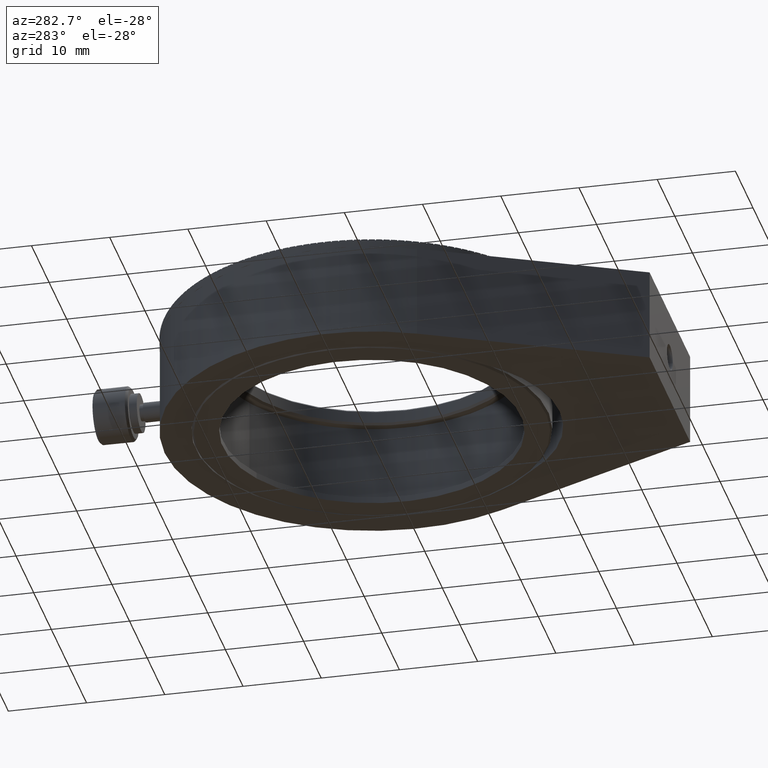
[diagram: clean part render]
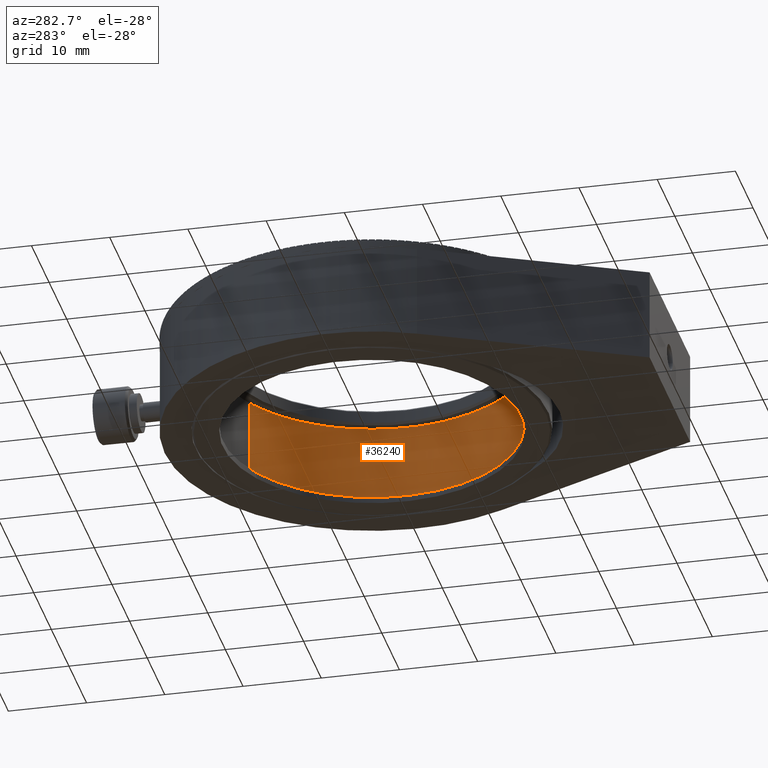
[diagram: same view with one face highlighted and labeled with its STEP entity id]
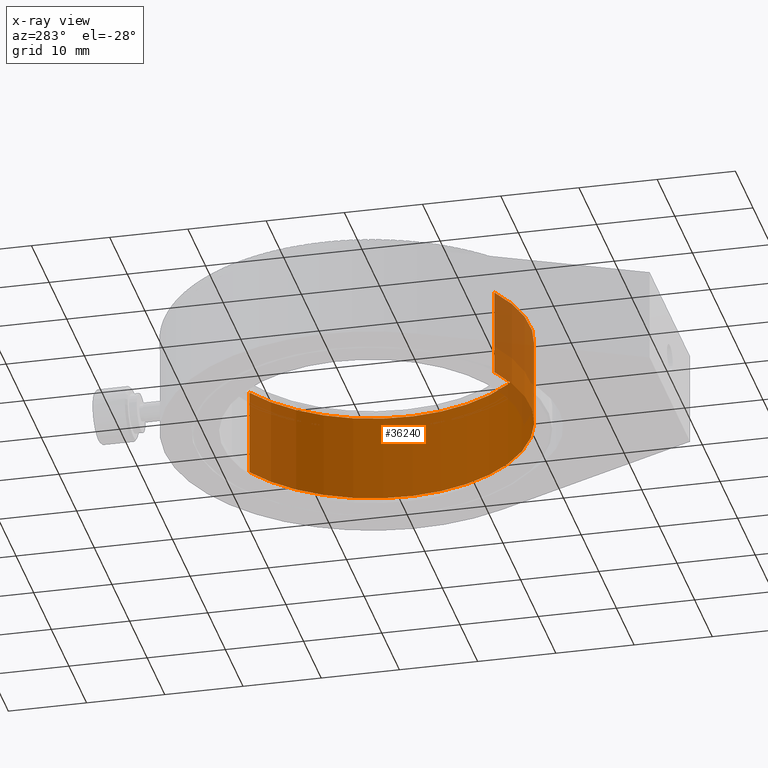
[diagram: x-ray of the same camera — body ghosted, the highlighted face saturated]
A machine part, auxiliary view. The second image highlights one B-rep face of the part: STEP entity #36240.
The next image is the same camera in x-ray: the body ghosted, the highlighted face saturated — about 11% of this face is hidden behind the body in this view.
In plain terms, the highlighted cylindrical surface (partial cylindrical patch) has radius 20.25 mm, axis along (-0, 0, 1).
Its self-contained STEP definition (entity closure, byte-faithful):
#83 = AXIS2_PLACEMENT_3D ( 'NONE', #1186, #5679, #59342 ) ;
#1186 = CARTESIAN_POINT ( 'NONE',  ( 0.000000000000000000, -10.74999999999999645, 0.000000000000000000 ) ) ;
#3875 = ORIENTED_EDGE ( 'NONE', *, *, #16675, .T. ) ;
#4552 = VECTOR ( 'NONE', #24121, 1000.000000000000000 ) ;
#4569 = ORIENTED_EDGE ( 'NONE', *, *, #58440, .T. ) ;
#5679 = DIRECTION ( 'NONE',  ( -0.000000000000000000, -1.000000000000000000, -0.000000000000000000 ) ) ;
#7991 = DIRECTION ( 'NONE',  ( 0.000000000000000000, 0.000000000000000000, 1.000000000000000000 ) ) ;
#8317 = VERTEX_POINT ( 'NONE', #39548 ) ;
#8844 = CARTESIAN_POINT ( 'NONE',  ( 2.479909768273390300E-15, 0.4999999999999726885, -20.25000000000000000 ) ) ;
#9721 = DIRECTION ( 'NONE',  ( 0.000000000000000000, 0.000000000000000000, 1.000000000000000000 ) ) ;
#10919 = AXIS2_PLACEMENT_3D ( 'NONE', #12790, #32257, #7991 ) ;
#12790 = CARTESIAN_POINT ( 'NONE',  ( 0.000000000000000000, -69.32564927611034022, 0.000000000000000000 ) ) ;
#13481 = EDGE_CURVE ( 'NONE', #49467, #19777, #54155, .T. ) ;
#15080 = CARTESIAN_POINT ( 'NONE',  ( 0.000000000000000000, -69.32564927611034022, 20.25000000000000000 ) ) ;
#15515 = VECTOR ( 'NONE', #29448, 1000.000000000000000 ) ;
#15698 = LINE ( 'NONE', #15080, #15515 ) ;
#16675 = EDGE_CURVE ( 'NONE', #49467, #26389, #31667, .T. ) ;
#18524 = FACE_OUTER_BOUND ( 'NONE', #54237, .T. ) ;
#19777 = VERTEX_POINT ( 'NONE', #8844 ) ;
#23619 = CYLINDRICAL_SURFACE ( 'NONE', #10919, 20.25000000000000000 ) ;
#24121 = DIRECTION ( 'NONE',  ( -0.000000000000000000, 1.000000000000000000, -0.000000000000000000 ) ) ;
#26389 = VERTEX_POINT ( 'NONE', #33635 ) ;
#28250 = CIRCLE ( 'NONE', #33359, 20.25000000000000000 ) ;
#29448 = DIRECTION ( 'NONE',  ( -0.000000000000000000, 1.000000000000000000, -0.000000000000000000 ) ) ;
#29712 = CARTESIAN_POINT ( 'NONE',  ( 2.479909768273390300E-15, -10.74999999999999645, -20.25000000000000000 ) ) ;
#31667 = CIRCLE ( 'NONE', #83, 20.25000000000000000 ) ;
#32257 = DIRECTION ( 'NONE',  ( -0.000000000000000000, 1.000000000000000000, -0.000000000000000000 ) ) ;
#33359 = AXIS2_PLACEMENT_3D ( 'NONE', #33977, #34300, #9721 ) ;
#33635 = CARTESIAN_POINT ( 'NONE',  ( 0.000000000000000000, -10.74999999999999645, 20.25000000000000000 ) ) ;
#33977 = CARTESIAN_POINT ( 'NONE',  ( 0.000000000000000000, 0.4999999999999726885, 0.000000000000000000 ) ) ;
#34193 = ORIENTED_EDGE ( 'NONE', *, *, #52787, .T. ) ;
#34300 = DIRECTION ( 'NONE',  ( 0.000000000000000000, 1.000000000000000000, 0.000000000000000000 ) ) ;
#34340 = CARTESIAN_POINT ( 'NONE',  ( 2.479909768273390300E-15, -69.32564927611034022, -20.25000000000000000 ) ) ;
#36240 = ADVANCED_FACE ( 'NONE', ( #18524 ), #23619, .F. ) ;
#39548 = CARTESIAN_POINT ( 'NONE',  ( 0.000000000000000000, 0.4999999999999726885, 20.25000000000000000 ) ) ;
#49467 = VERTEX_POINT ( 'NONE', #29712 ) ;
#49961 = ORIENTED_EDGE ( 'NONE', *, *, #13481, .F. ) ;
#52787 = EDGE_CURVE ( 'NONE', #8317, #19777, #28250, .T. ) ;
#54155 = LINE ( 'NONE', #34340, #4552 ) ;
#54237 = EDGE_LOOP ( 'NONE', ( #49961, #3875, #4569, #34193 ) ) ;
#58440 = EDGE_CURVE ( 'NONE', #26389, #8317, #15698, .T. ) ;
#59342 = DIRECTION ( 'NONE',  ( 0.000000000000000000, 0.000000000000000000, 1.000000000000000000 ) ) ;